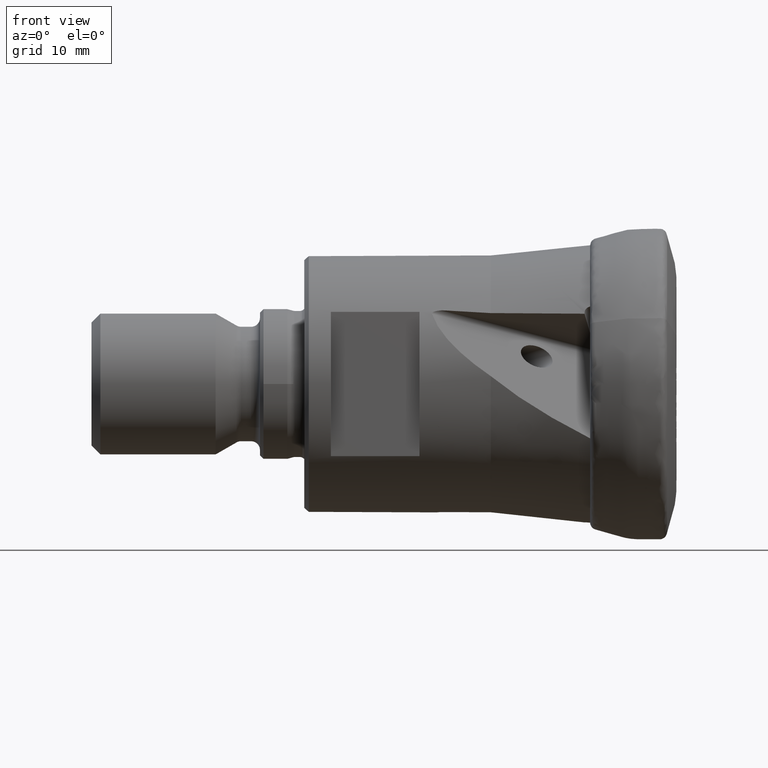
[diagram: clean part render]
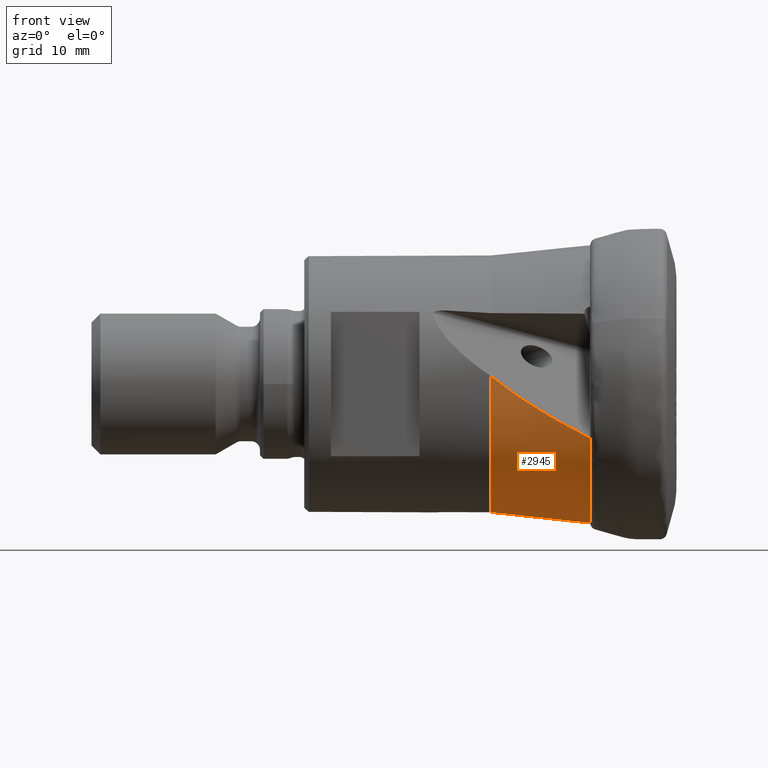
[diagram: same view with one face highlighted and labeled with its STEP entity id]
A machine part, front view. The second image highlights one B-rep face of the part: STEP entity #2945.
In plain terms, the highlighted conical surface has half-angle 6.019 deg.
Its self-contained STEP definition (entity closure, byte-faithful):
#51 = EDGE_CURVE ( 'NONE', #110, #4319, #2277, .T. ) ;
#70 = CARTESIAN_POINT ( 'NONE',  ( -9.431046141928721500, -0.3387015826109979200, -15.61070949073884700 ) ) ;
#92 = ORIENTED_EDGE ( 'NONE', *, *, #2540, .F. ) ;
#110 = VERTEX_POINT ( 'NONE', #4503 ) ;
#166 = CARTESIAN_POINT ( 'NONE',  ( -19.99999999999999600, -0.8772664518676196500, -14.47343786294146600 ) ) ;
#306 = VERTEX_POINT ( 'NONE', #3495 ) ;
#351 = CARTESIAN_POINT ( 'NONE',  ( -9.418613651179525100, -0.5112047288918115700, -15.60827791597889200 ) ) ;
#616 =( BOUNDED_CURVE ( )  B_SPLINE_CURVE ( 3, ( #3193, #3951, #1207, #4578 ),
 .UNSPECIFIED., .F., .F. ) 
 B_SPLINE_CURVE_WITH_KNOTS ( ( 4, 4 ),
 ( 2.696686775508372300, 2.709261706128674800 ),
 .UNSPECIFIED. ) 
 CURVE ( )  GEOMETRIC_REPRESENTATION_ITEM ( )  RATIONAL_B_SPLINE_CURVE ( ( 1.000000000000000000, 0.9999868226367354400, 0.9999868226367354400, 1.000000000000000000 ) ) 
 REPRESENTATION_ITEM ( '' )  );
#731 = EDGE_CURVE ( 'NONE', #3861, #2417, #2813, .T. ) ;
#1056 = ORIENTED_EDGE ( 'NONE', *, *, #4183, .F. ) ;
#1099 = CARTESIAN_POINT ( 'NONE',  ( -9.431046141928721500, -0.3387015826109979200, -15.61070949073884700 ) ) ;
#1108 = CARTESIAN_POINT ( 'NONE',  ( -8.049999999999574400, -9.858406733135658000E-016, 0.0000000000000000000 ) ) ;
#1207 = CARTESIAN_POINT ( 'NONE',  ( -9.440567602458964200, -0.2057068099728766300, -15.61216595512804300 ) ) ;
#1489 = CARTESIAN_POINT ( 'NONE',  ( -13.41150353951061900, -14.89592605759889200, -3.797711012099715500 ) ) ;
#1722 = DIRECTION ( 'NONE',  ( 1.000000000000000000, 1.211123852255051100E-016, -0.0000000000000000000 ) ) ;
#1751 = ORIENTED_EDGE ( 'NONE', *, *, #731, .T. ) ;
#1814 = ORIENTED_EDGE ( 'NONE', *, *, #3559, .F. ) ;
#1861 = CARTESIAN_POINT ( 'NONE',  ( -8.804756694689677600, -14.43134863399929000, -6.132839093430742000 ) ) ;
#1905 = DIRECTION ( 'NONE',  ( -2.392722035830079000E-016, 1.000000000000000000, 0.0000000000000000000 ) ) ;
#2024 = CARTESIAN_POINT ( 'NONE',  ( -17.18868042062879900, -14.91016238185312800, -1.433153925909048700 ) ) ;
#2115 = CARTESIAN_POINT ( 'NONE',  ( -8.804756694689677600, -14.43134863399929000, -6.132839093430742000 ) ) ;
#2244 = DIRECTION ( 'NONE',  ( -1.100712865467517200E-016, 1.000000000000000000, 0.0000000000000000000 ) ) ;
#2277 = CIRCLE ( 'NONE', #2459, 14.50000000000000000 ) ;
#2349 = ORIENTED_EDGE ( 'NONE', *, *, #51, .T. ) ;
#2417 = VERTEX_POINT ( 'NONE', #2974 ) ;
#2459 = AXIS2_PLACEMENT_3D ( 'NONE', #4129, #4489, #1905 ) ;
#2540 = EDGE_CURVE ( 'NONE', #306, #4319, #3652, .T. ) ;
#2657 = EDGE_LOOP ( 'NONE', ( #4538, #1814, #2349, #92, #1056, #1751 ) ) ;
#2687 = VERTEX_POINT ( 'NONE', #2115 ) ;
#2802 = AXIS2_PLACEMENT_3D ( 'NONE', #4109, #1722, #4308 ) ;
#2813 = B_SPLINE_CURVE_WITH_KNOTS ( 'NONE', 3,
 ( #1099, #351, #2960, #3332, #3700, #4085 ),
 .UNSPECIFIED., .F., .F.,
 ( 4, 2, 4 ),
 ( 4.470280076681872700E-018, 0.0005115121572741158100, 0.001023024314548227300 ),
 .UNSPECIFIED. ) ;
#2945 = ADVANCED_FACE ( 'NONE', ( #3031 ), #3243, .T. ) ;
#2960 = CARTESIAN_POINT ( 'NONE',  ( -9.350182136395258000, -0.6750531842413410900, -15.60885719953512300 ) ) ;
#2974 = CARTESIAN_POINT ( 'NONE',  ( -8.804756694689681100, -1.063816344324237900, -15.64429076460462500 ) ) ;
#2980 = AXIS2_PLACEMENT_3D ( 'NONE', #1108, #4451, #2244 ) ;
#3031 = FACE_OUTER_BOUND ( 'NONE', #2657, .T. ) ;
#3193 = CARTESIAN_POINT ( 'NONE',  ( -9.431046141928721500, -0.3387015826109979200, -15.61070949073884700 ) ) ;
#3243 = CONICAL_SURFACE ( 'NONE', #2980, 15.76000000000000000, 0.1050511775227344200 ) ;
#3332 = CARTESIAN_POINT ( 'NONE',  ( -9.125030755776512200, -0.9352649756318260900, -15.61921037445868900 ) ) ;
#3486 = CARTESIAN_POINT ( 'NONE',  ( -12.96417086872119000, -0.3852733513381056400, -15.23902372974060700 ) ) ;
#3495 = CARTESIAN_POINT ( 'NONE',  ( -9.445233207703447300, -0.1392052592752272600, -15.61226695188627500 ) ) ;
#3517 = CARTESIAN_POINT ( 'NONE',  ( -19.99999999999999600, -0.8772664518676196500, -14.47343786294146600 ) ) ;
#3559 = EDGE_CURVE ( 'NONE', #110, #2687, #4309, .T. ) ;
#3652 = B_SPLINE_CURVE_WITH_KNOTS ( 'NONE', 3,
 ( #4419, #3486, #4698, #166 ),
 .UNSPECIFIED., .F., .F.,
 ( 4, 4 ),
 ( 0.001406614395333046700, 0.01204826660415071900 ),
 .UNSPECIFIED. ) ;
#3700 = CARTESIAN_POINT ( 'NONE',  ( -8.971428524367368600, -1.026731184243078400, -15.62919821615207300 ) ) ;
#3708 = CARTESIAN_POINT ( 'NONE',  ( -19.99999999999998900, -14.47354393456784800, 0.8755146909870880100 ) ) ;
#3861 = VERTEX_POINT ( 'NONE', #70 ) ;
#3951 = CARTESIAN_POINT ( 'NONE',  ( -9.435838518217194000, -0.2722064607081925400, -15.61164679457106700 ) ) ;
#3955 = EDGE_CURVE ( 'NONE', #2687, #2417, #4312, .T. ) ;
#4085 = CARTESIAN_POINT ( 'NONE',  ( -8.804756694689681100, -1.063816344324237900, -15.64429076460462500 ) ) ;
#4109 = CARTESIAN_POINT ( 'NONE',  ( -8.804756694689681100, -1.154488198503668000E-015, 0.0000000000000000000 ) ) ;
#4129 = CARTESIAN_POINT ( 'NONE',  ( -19.99999999999999600, -2.449293598294702600E-015, 0.0000000000000000000 ) ) ;
#4183 = EDGE_CURVE ( 'NONE', #3861, #306, #616, .T. ) ;
#4308 = DIRECTION ( 'NONE',  ( -1.106299187840371700E-016, 1.000000000000000000, 0.0000000000000000000 ) ) ;
#4309 =( BOUNDED_CURVE ( )  B_SPLINE_CURVE ( 3, ( #3708, #2024, #1489, #1861 ),
 .UNSPECIFIED., .F., .T. ) 
 B_SPLINE_CURVE_WITH_KNOTS ( ( 4, 4 ),
 ( 3.623418594145702000, 4.003896270833839900 ),
 .UNSPECIFIED. ) 
 CURVE ( )  GEOMETRIC_REPRESENTATION_ITEM ( )  RATIONAL_B_SPLINE_CURVE ( ( 1.000000000000000000, 0.9879727335755706900, 0.9879727335755706900, 1.000000000000000000 ) ) 
 REPRESENTATION_ITEM ( '' )  );
#4312 = CIRCLE ( 'NONE', #2802, 15.68041895938832700 ) ;
#4319 = VERTEX_POINT ( 'NONE', #3517 ) ;
#4419 = CARTESIAN_POINT ( 'NONE',  ( -9.445233207703447300, -0.1392052592752272600, -15.61226695188627500 ) ) ;
#4451 = DIRECTION ( 'NONE',  ( 1.000000000000000000, 1.224646799147351500E-016, -0.0000000000000000000 ) ) ;
#4489 = DIRECTION ( 'NONE',  ( 1.000000000000000000, 1.224646799147351500E-016, -0.0000000000000000000 ) ) ;
#4503 = CARTESIAN_POINT ( 'NONE',  ( -19.99999999999998900, -14.47354393456784800, 0.8755146909870880100 ) ) ;
#4538 = ORIENTED_EDGE ( 'NONE', *, *, #3955, .F. ) ;
#4578 = CARTESIAN_POINT ( 'NONE',  ( -9.445233207703447300, -0.1392052592752272600, -15.61226695188627500 ) ) ;
#4698 = CARTESIAN_POINT ( 'NONE',  ( -16.48247983732938600, -0.6312974809450910800, -14.85991220723329100 ) ) ;